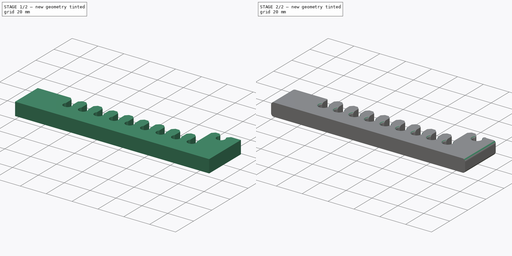
[diagram: build sequence overview — one tinted view per stage of 2, left to right]
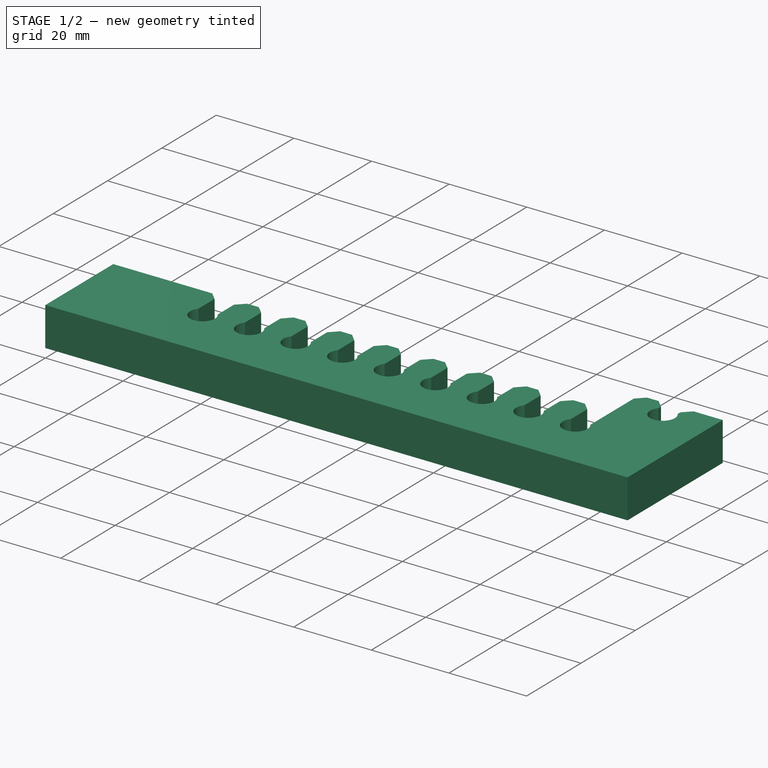
[diagram: stage 1 of 2 — iso view after this stage's code; geometry added in this stage tinted green]
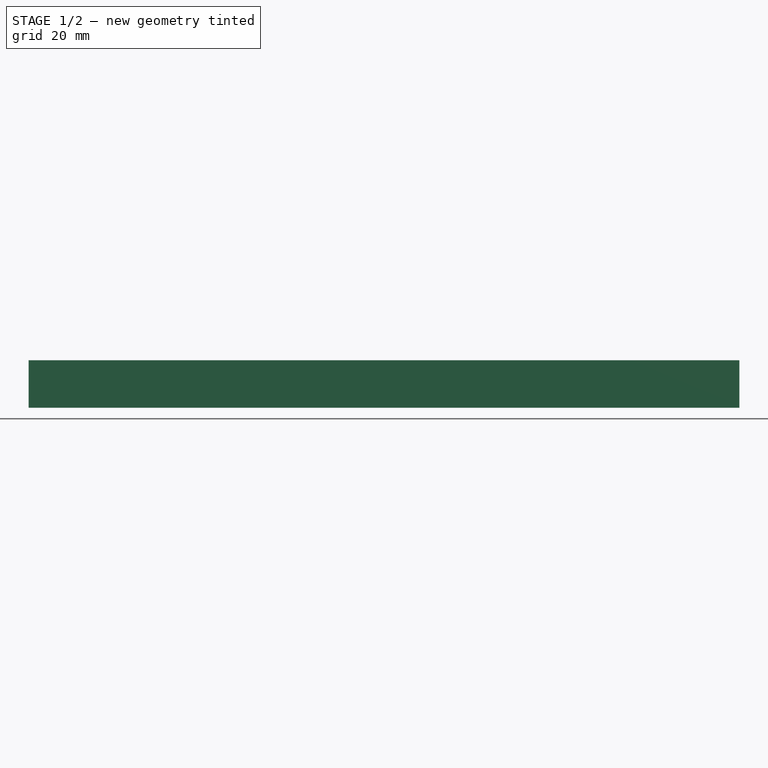
[diagram: stage 1 of 2 — front view after this stage's code; geometry added in this stage tinted green]
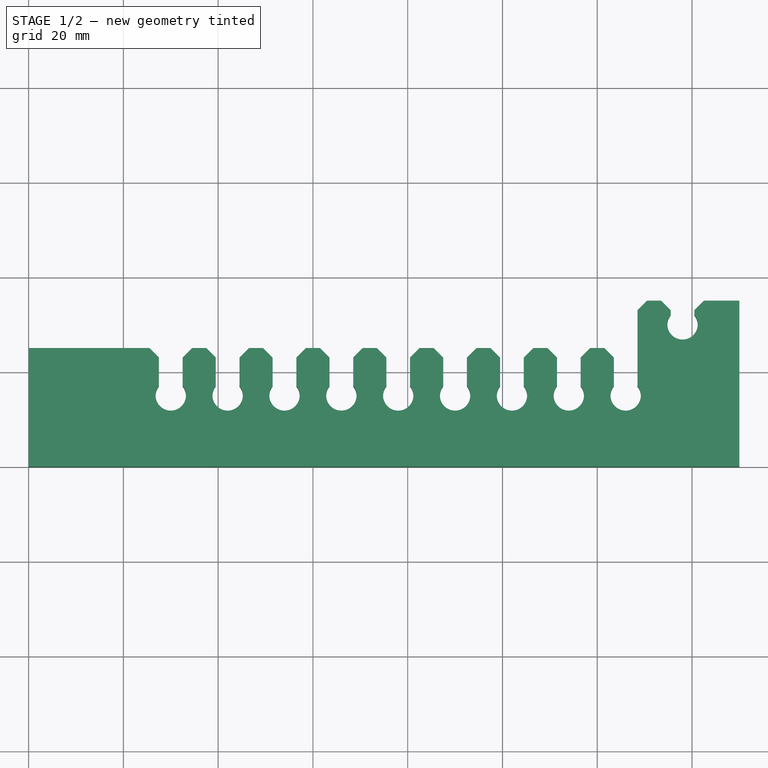
[diagram: stage 1 of 2 — top view after this stage's code; geometry added in this stage tinted green]
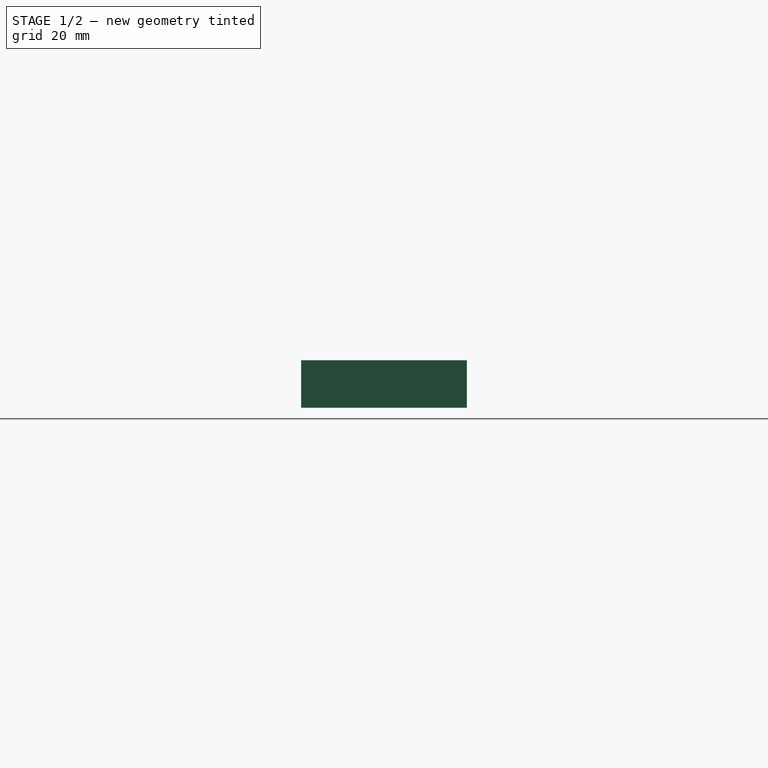
[diagram: stage 1 of 2 — right view after this stage's code; geometry added in this stage tinted green]
FCSTD DOCUMENT  (FreeCAD 1.0RUnknown)
Label: primary-new
License: All rights reserved
LicenseURL: https://en.wikipedia.org/wiki/All_rights_reserved
objects: PartDesign::Fillet×2, Sketcher::SketchObject×1, Spreadsheet::Sheet×1, PartDesign::Pad×1, PartDesign::Chamfer×1, PartDesign::Body×1
note: 15 computed .brp shape members not serialized (recipe doc carries the construction recipe); baked Part::Feature solids carry a one-line shape summary decoded from their .brp

FEATURE [Sketcher::SketchObject] Sketch
  ArcFitTolerance = 1e-06
  AttachmentSupport = -> [XY_Plane]
  FullyConstrained = true
  MakeInternals = false
  MapMode = 5
  expr: Constraints[11] = Spreadsheet.hole_diameter
  expr: Constraints[149] = Spreadsheet.hole_to_hole
  expr: Constraints[19] = Spreadsheet.hole_to_hole
  expr: Constraints[20] = Spreadsheet.hole_to_hole
  expr: Constraints[21] = Spreadsheet.hole_to_hole
  expr: Constraints[22] = Spreadsheet.hole_to_hole
  expr: Constraints[23] = Spreadsheet.hole_to_hole
  expr: Constraints[24] = Spreadsheet.hole_to_hole
  expr: Constraints[25] = Spreadsheet.hole_to_hole
  expr: Constraints[28] = Spreadsheet.hole_to_hole
  expr: Constraints[29] = Spreadsheet.hole_diameter
  sketch-geometry (47):
    g0: ArcOfCircle CenterX=30 CenterY=15 CenterZ=0 NormalX=0 NormalY=0 NormalZ=1 AngleXU=0 Radius=3.2 StartAngle=2.46646 EndAngle=6.95832
    g1: ArcOfCircle CenterX=42 CenterY=15 CenterZ=0 NormalX=0 NormalY=0 NormalZ=1 AngleXU=0 Radius=3.2 StartAngle=2.46646 EndAngle=6.95832
    g2: ArcOfCircle CenterX=54 CenterY=15 CenterZ=0 NormalX=0 NormalY=0 NormalZ=1 AngleXU=0 Radius=3.2 StartAngle=2.46646 EndAngle=6.95832
    g3: ArcOfCircle CenterX=66 CenterY=15 CenterZ=0 NormalX=0 NormalY=0 NormalZ=1 AngleXU=0 Radius=3.2 StartAngle=2.46646 EndAngle=6.95832
    g4: ArcOfCircle CenterX=78 CenterY=15 CenterZ=0 NormalX=0 NormalY=0 NormalZ=1 AngleXU=0 Radius=3.2 StartAngle=2.46646 EndAngle=6.95832
    g5: ArcOfCircle CenterX=90 CenterY=15 CenterZ=0 NormalX=0 NormalY=0 NormalZ=1 AngleXU=0 Radius=3.2 StartAngle=2.46646 EndAngle=6.95832
    g6: ArcOfCircle CenterX=102 CenterY=15 CenterZ=0 NormalX=0 NormalY=0 NormalZ=1 AngleXU=0 Radius=3.2 StartAngle=2.46646 EndAngle=6.95832
    g7: ArcOfCircle CenterX=114 CenterY=15 CenterZ=0 NormalX=0 NormalY=0 NormalZ=1 AngleXU=0 Radius=3.2 StartAngle=2.46646 EndAngle=6.95832
    g8: ArcOfCircle CenterX=126 CenterY=15 CenterZ=0 NormalX=0 NormalY=0 NormalZ=1 AngleXU=0 Radius=3.2 StartAngle=2.46646 EndAngle=6.95832
    g9: LineSegment [constr] StartX=0 StartY=15 StartZ=0 EndX=150 EndY=15 EndZ=0
    g10: ArcOfCircle CenterX=138 CenterY=30 CenterZ=0 NormalX=0 NormalY=0 NormalZ=1 AngleXU=0 Radius=3.2 StartAngle=2.46646 EndAngle=6.95832
    g11: LineSegment StartX=135.502 StartY=35 StartZ=0 EndX=135.502 EndY=32 EndZ=0
    g12: LineSegment StartX=140.498 StartY=35 StartZ=0 EndX=140.498 EndY=32 EndZ=0
    g13: LineSegment StartX=0 StartY=25 StartZ=0 EndX=27.502 EndY=25 EndZ=0
    g14: LineSegment StartX=32.498 StartY=25 StartZ=0 EndX=39.502 EndY=25 EndZ=0
    g15: LineSegment StartX=44.498 StartY=25 StartZ=0 EndX=51.502 EndY=25 EndZ=0
    g16: LineSegment StartX=56.498 StartY=25 StartZ=0 EndX=63.502 EndY=25 EndZ=0
    g17: LineSegment StartX=68.498 StartY=25 StartZ=0 EndX=75.502 EndY=25 EndZ=0
    g18: LineSegment StartX=80.498 StartY=25 StartZ=0 EndX=87.502 EndY=25 EndZ=0
    g19: LineSegment StartX=92.498 StartY=25 StartZ=0 EndX=99.502 EndY=25 EndZ=0
    g20: LineSegment StartX=104.498 StartY=25 StartZ=0 EndX=111.502 EndY=25 EndZ=0
    g21: LineSegment StartX=116.498 StartY=25 StartZ=0 EndX=123.502 EndY=25 EndZ=0
    g22: LineSegment StartX=150 StartY=35 StartZ=0 EndX=150 EndY=0 EndZ=0
    g23: LineSegment [constr] StartX=135.502 StartY=35 StartZ=0 EndX=140.498 EndY=35 EndZ=0
    g24: LineSegment StartX=128.498 StartY=35 StartZ=0 EndX=135.502 EndY=35 EndZ=0
    g25: LineSegment StartX=140.498 StartY=35 StartZ=0 EndX=150 EndY=35 EndZ=0
    g26: LineSegment StartX=0 StartY=0 StartZ=0 EndX=150 EndY=0 EndZ=0
    g27: LineSegment StartX=0 StartY=0 StartZ=0 EndX=0 EndY=25 EndZ=0
    g28: LineSegment [constr] StartX=0 StartY=17 StartZ=0 EndX=150 EndY=17 EndZ=0
    g29: LineSegment StartX=128.498 StartY=17 StartZ=0 EndX=128.498 EndY=35 EndZ=0
    g30: LineSegment StartX=123.502 StartY=17 StartZ=0 EndX=123.502 EndY=25 EndZ=0
    g31: LineSegment StartX=27.502 StartY=17 StartZ=0 EndX=27.502 EndY=25 EndZ=0
    g32: LineSegment StartX=32.498 StartY=17 StartZ=0 EndX=32.498 EndY=25 EndZ=0
    g33: LineSegment StartX=39.502 StartY=17 StartZ=0 EndX=39.502 EndY=25 EndZ=0
    g34: LineSegment StartX=44.498 StartY=17 StartZ=0 EndX=44.498 EndY=25 EndZ=0
    g35: LineSegment StartX=51.502 StartY=17 StartZ=0 EndX=51.502 EndY=25 EndZ=0
    g36: LineSegment StartX=56.498 StartY=17 StartZ=0 EndX=56.498 EndY=25 EndZ=0
    g37: LineSegment StartX=63.502 StartY=17 StartZ=0 EndX=63.502 EndY=25 EndZ=0
    g38: LineSegment StartX=68.498 StartY=17 StartZ=0 EndX=68.498 EndY=25 EndZ=0
    g39: LineSegment StartX=75.502 StartY=17 StartZ=0 EndX=75.502 EndY=25 EndZ=0
    g40: LineSegment StartX=80.498 StartY=17 StartZ=0 EndX=80.498 EndY=25 EndZ=0
    g41: LineSegment StartX=87.502 StartY=17 StartZ=0 EndX=87.502 EndY=25 EndZ=0
    g42: LineSegment StartX=92.498 StartY=17 StartZ=0 EndX=92.498 EndY=25 EndZ=0
    g43: LineSegment StartX=99.502 StartY=17 StartZ=0 EndX=99.502 EndY=25 EndZ=0
    g44: LineSegment StartX=104.498 StartY=17 StartZ=0 EndX=104.498 EndY=25 EndZ=0
    g45: LineSegment StartX=111.502 StartY=17 StartZ=0 EndX=111.502 EndY=25 EndZ=0
    g46: LineSegment StartX=116.498 StartY=17 StartZ=0 EndX=116.498 EndY=25 EndZ=0
  constraints (151):
    c: DistanceY(g22,g22) = 35
    c: Horizontal(g9)
    c: PointOnObject(g8,g9)
    c: PointOnObject(g7,g9)
    c: PointOnObject(g6,g9)
    c: PointOnObject(g5,g9)
    c: PointOnObject(g4,g9)
    c: PointOnObject(g3,g9)
    c: PointOnObject(g2,g9)
    c: PointOnObject(g1,g9)
    c: PointOnObject(g0,g9)
    c: Diameter(g0) = 6.4
    c: Equal(g1,g2)
    c: Equal(g2,g3)
    c: Equal(g3,g4)
    c: Equal(g4,g5)
    c: Equal(g5,g6)
    c: Equal(g6,g7)
    c: Equal(g8,g0)
    c: DistanceX(g0,g1) = 12
    c: Distance(g1,g2) = 12
    c: DistanceX(g2,g3) = 12
    c: Distance(g3,g4) = 12
    c: Distance(g4,g5) = 12
    c: Distance(g5,g6) = 12
    c: Distance(g6,g7) = 12
    c: Distance(g-1,g9) = 15
    c: Distance(g10,g9) = 15
    c: DistanceX(g8,g10) = 12
    c: Diameter(g10) = 6.4
    c: Vertical(g11)
    c: Vertical(g12)
    c: Horizontal(g13)
    c: Horizontal(g14)
    c: Horizontal(g15)
    c: Horizontal(g16)
    c: Horizontal(g17)
    c: Horizontal(g18)
    c: Horizontal(g19)
    c: Horizontal(g20)
    c: Horizontal(g21)
    c: Equal(g11,g12)
    c: Vertical(g22)
    c: PointOnObject(g13,g-2)
    c: Distance(g-1,g13) = 25
    c: Coincident(g23,g11)
    c: Coincident(g23,g12)
    c: Horizontal(g23)
    c: PointOnObject(g9,g22)
    c: Coincident(g24,g11)
    c: Horizontal(g24)
    c: Coincident(g25,g12)
    c: Coincident(g25,g22)
    c: Horizontal(g25)
    c: Coincident(g26,g-1)
    c: Coincident(g26,g22)
    c: Horizontal(g26)
    c: Coincident(g27,g26)
    c: Coincident(g27,g13)
    c: PointOnObject(g9,g-2)
    c: DistanceX(g26,g26) = 150
    c: Distance(g0,g-2) = 30
    c: PointOnObject(g28,g22)
    c: Horizontal(g28)
    c: Coincident(g29,g8)
    c: Coincident(g29,g24)
    c: Vertical(g29)
    c: PointOnObject(g28,g-2)
    c: PointOnObject(g8,g28)
    c: Coincident(g30,g8)
    c: Vertical(g30)
    c: Coincident(g31,g0)
    c: Coincident(g31,g13)
    c: Vertical(g31)
    c: PointOnObject(g0,g28)
    c: Coincident(g32,g0)
    c: Coincident(g32,g14)
    c: Vertical(g32)
    c: Coincident(g33,g1)
    c: Coincident(g33,g14)
    c: Vertical(g33)
    c: PointOnObject(g1,g28)
    c: PointOnObject(g0,g28)
    c: Coincident(g34,g1)
    c: Coincident(g34,g15)
    c: Vertical(g34)
    c: PointOnObject(g1,g28)
    c: Coincident(g35,g2)
    c: Coincident(g35,g15)
    c: Vertical(g35)
    c: PointOnObject(g2,g28)
    c: Coincident(g36,g2)
    c: Coincident(g36,g16)
    c: Vertical(g36)
    c: Coincident(g37,g3)
    c: Coincident(g37,g16)
    c: Vertical(g37)
    c: Coincident(g38,g3)
    c: Coincident(g38,g17)
    c: Vertical(g38)
    c: Coincident(g39,g4)
    c: Vertical(g39)
    c: Coincident(g17,g39)
    c: PointOnObject(g2,g28)
    c: PointOnObject(g3,g28)
    c: PointOnObject(g3,g28)
    c: PointOnObject(g4,g28)
    c: Coincident(g40,g4)
    c: Coincident(g40,g18)
    c: PointOnObject(g4,g28)
    c: Coincident(g41,g5)
    c: Coincident(g41,g18)
    c: PointOnObject(g5,g28)
    c: Vertical(g40)
    c: Vertical(g41)
    c: Coincident(g42,g5)
    c: Coincident(g42,g19)
    c: Vertical(g42)
    c: Coincident(g43,g6)
    c: Coincident(g43,g19)
    c: Vertical(g43)
    c: Coincident(g44,g6)
    c: Coincident(g44,g20)
    c: Vertical(g44)
    c: Coincident(g45,g7)
    c: Coincident(g45,g20)
    c: Vertical(g45)
    c: Coincident(g46,g7)
    c: Coincident(g46,g21)
    c: Vertical(g46)
    c: PointOnObject(g5,g28)
    c: PointOnObject(g6,g28)
    c: PointOnObject(g6,g28)
    c: PointOnObject(g7,g28)
    c: PointOnObject(g7,g28)
    c: PointOnObject(g8,g28)
    c: Equal(g32,g34)
    c: Equal(g34,g36)
    c: Equal(g36,g38)
    c: Equal(g38,g40)
    c: Equal(g40,g42)
    c: Equal(g42,g44)
    c: Equal(g44,g46)
    c: DistanceY(g32,g32) = 8
    c: Coincident(g11,g10)
    c: Coincident(g10,g12)
    c: DistanceY(g10,g10) = 2
    c: Distance(g9,g28) = 2
    c: Coincident(g21,g30)
    c: DistanceX(g7,g8) = 12
    c: Equal(g1,g0)
FEATURE [Spreadsheet::Sheet] Spreadsheet
  cells = A1='Hole to hole; B1(hole_to_hole)=12; A2='Hole diameter; B2(hole_diameter)=6.4; A3='Number of holes; B3(n_holes)=10
FEATURE [PartDesign::Pad] Pad
  Direction = (0,0,1)
  Length = 10
  Length2 = 10
  Profile = -> Sketch
  ReferenceAxis = -> Sketch [N_Axis]
  Refine = true
  Suppressed = false
  Type = 0
FEATURE [PartDesign::Chamfer] Chamfer
  Angle = 45
  Base = -> Pad [Edge5,Edge14,Edge17,Edge26,Edge29,Edge38,Edge41,Edge50,Edge53,Edge62,Edge65,Edge74,Edge77,Edge86,Edge89,Edge98,Edge101,Edge110,Edge113,Edge122]
  BaseFeature = -> Pad
  ChamferType = 0
  FlipDirection = false
  Refine = true
  Size = 2
  Size2 = 1
  SupportTransform = false
  Suppressed = false
  UseAllEdges = false
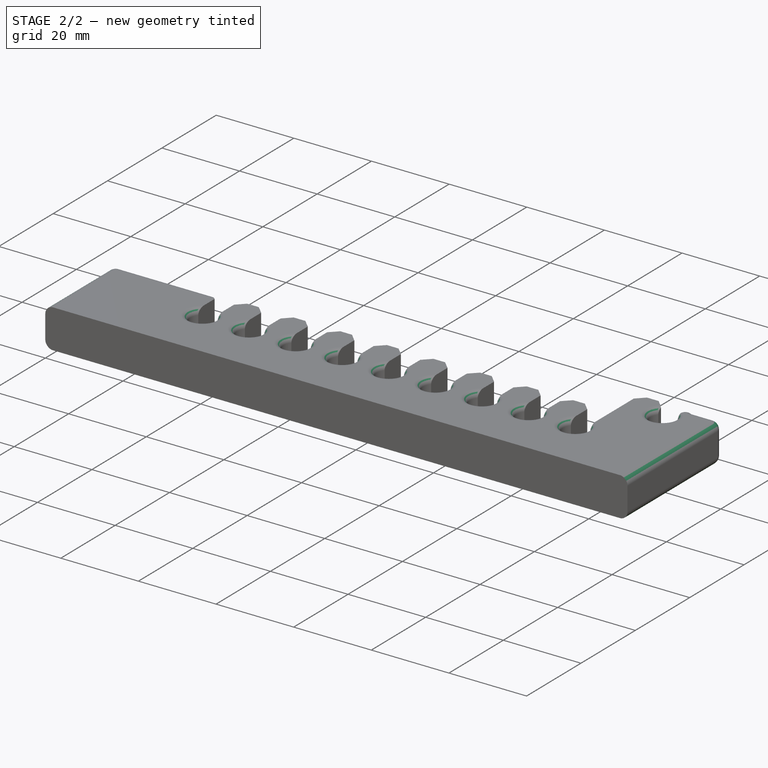
[diagram: stage 2 of 2 — iso view after this stage's code; geometry added in this stage tinted green]
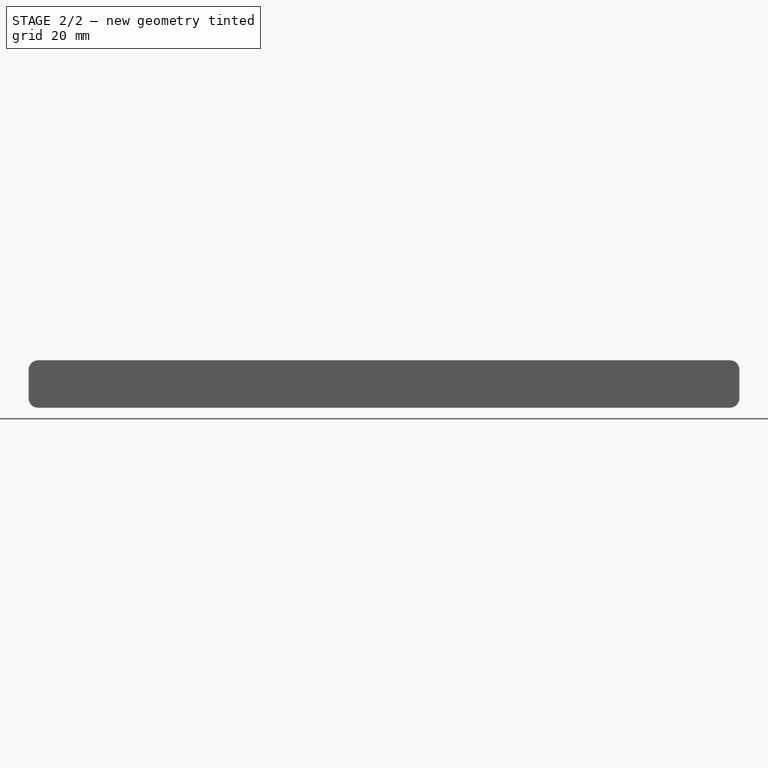
[diagram: stage 2 of 2 — front view after this stage's code; geometry added in this stage tinted green]
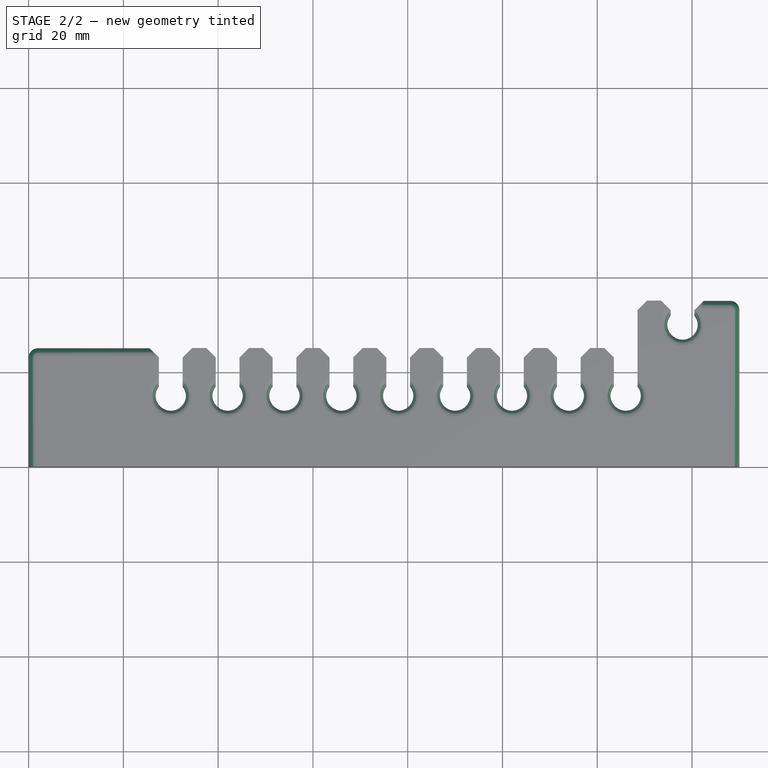
[diagram: stage 2 of 2 — top view after this stage's code; geometry added in this stage tinted green]
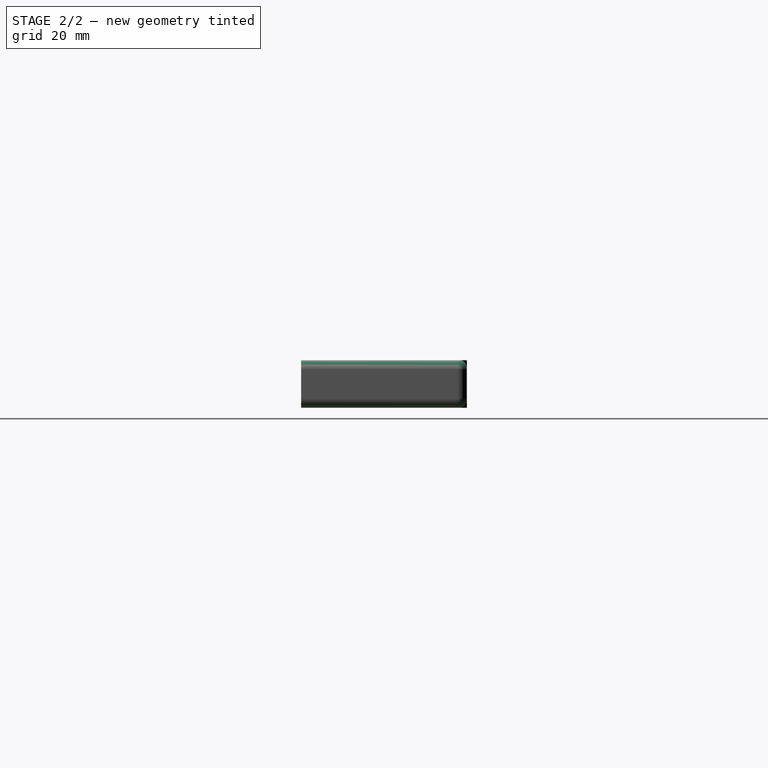
[diagram: stage 2 of 2 — right view after this stage's code; geometry added in this stage tinted green]
FEATURE [PartDesign::Fillet] Fillet
  Base = -> Chamfer [Edge74,Edge86,Edge98,Edge110,Edge122,Edge131,Edge119,Edge107,Edge95,Edge83,Edge18,Edge30,Edge42,Edge54,Edge66,Edge57,Edge45,Edge33,Edge21,Edge9]
  BaseFeature = -> Chamfer
  Radius = 1.5
  Refine = true
  SupportTransform = false
  Suppressed = false
  UseAllEdges = false
FEATURE [PartDesign::Fillet] Fillet001
  Base = -> Fillet [Edge77,Edge5,Edge76,Edge13,Edge88,Edge95,Edge81,Edge7,Edge89,Edge11]
  BaseFeature = -> Fillet
  Radius = 2
  Refine = true
  SupportTransform = false
  Suppressed = false
  UseAllEdges = false
FEATURE [PartDesign::Body] Body
  AllowCompound = false
  Group = -> [Sketch,Pad,Chamfer,Fillet,Fillet001]
  Origin = -> Origin
  Tip = -> Fillet001
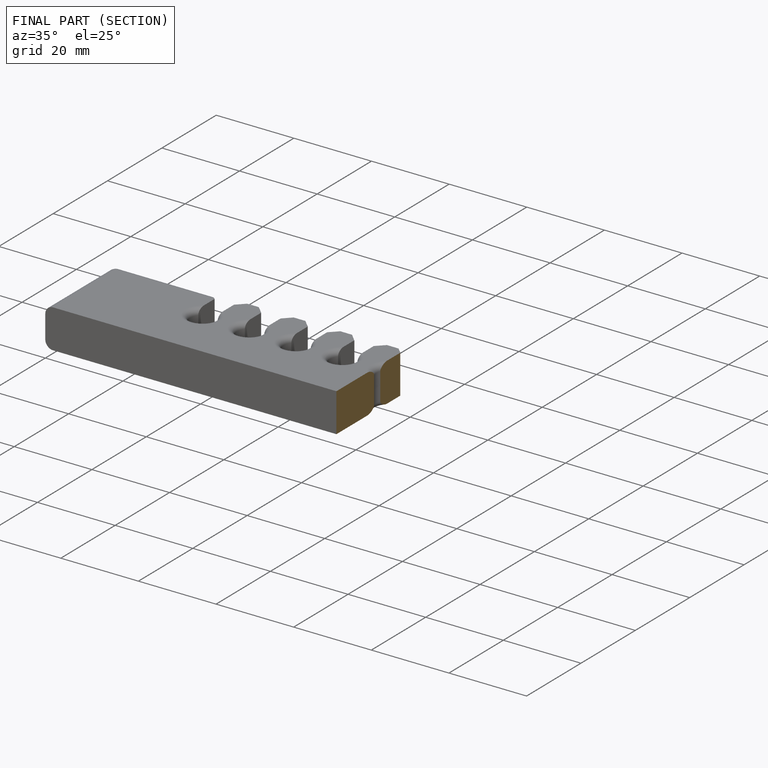
[diagram: finished part — half-section view (interior)]
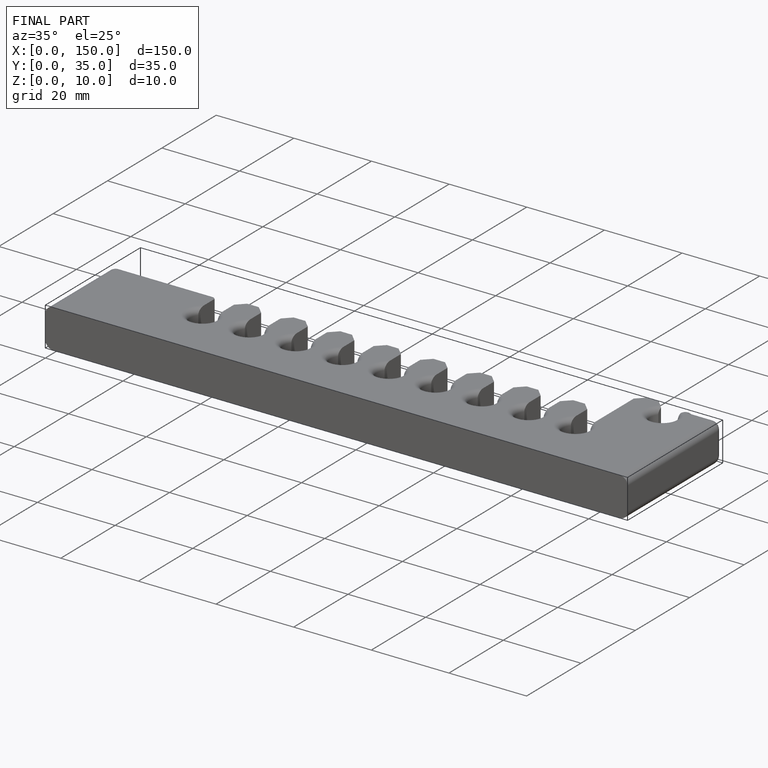
[diagram: finished part — iso view with bounding-box wireframe]
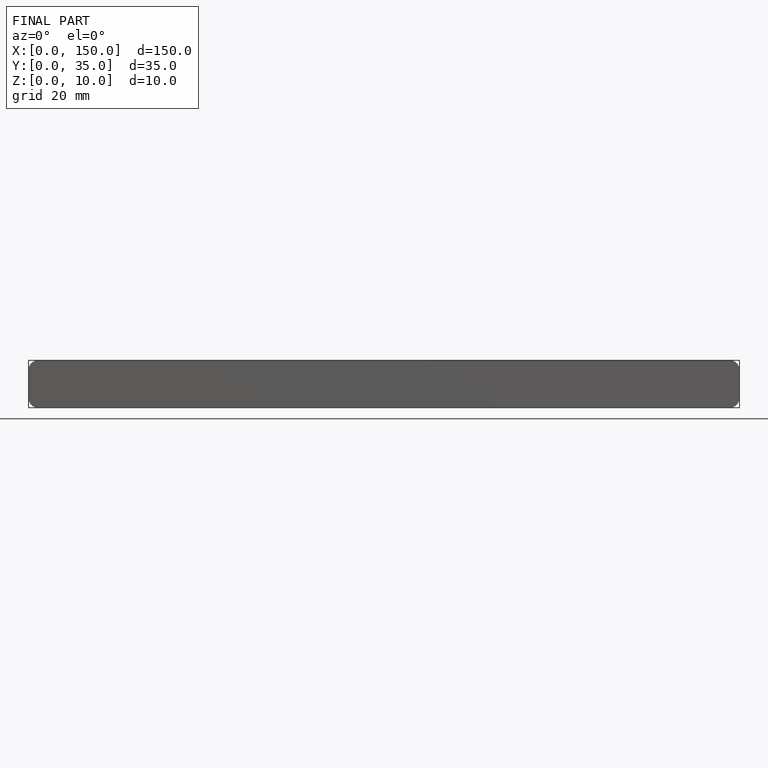
[diagram: finished part — front view with bounding-box wireframe]
